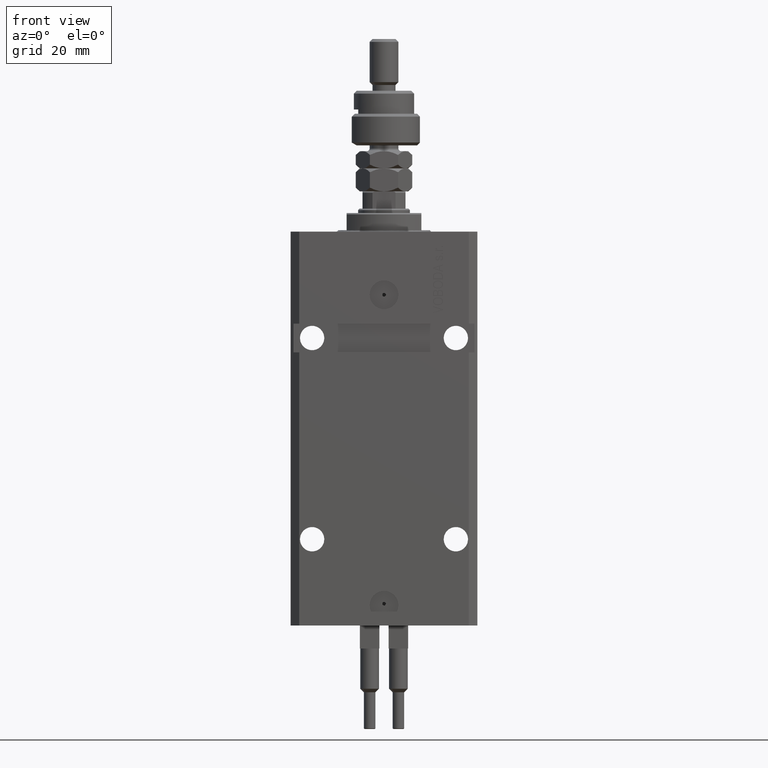
[diagram: clean part render]
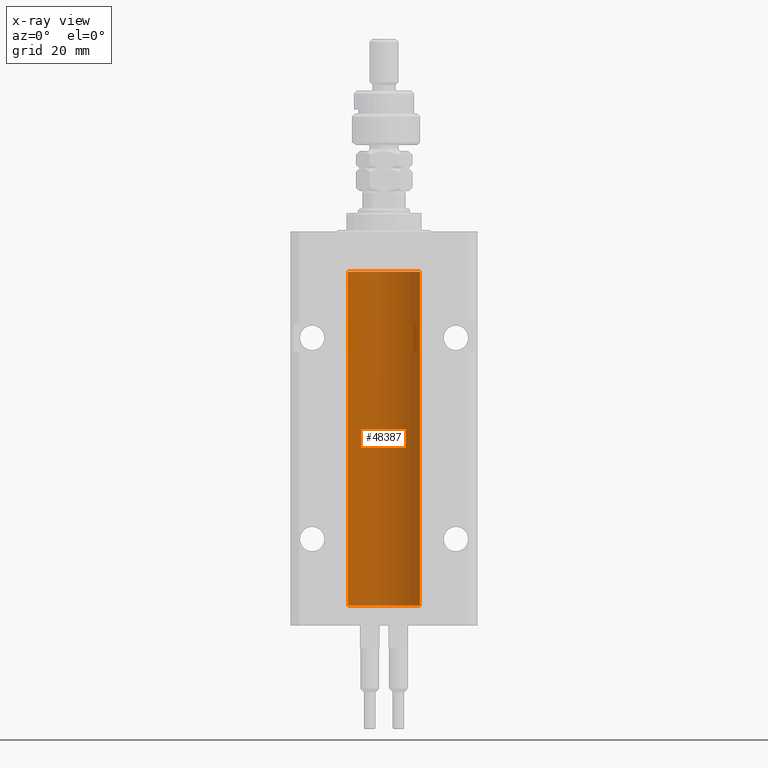
[diagram: x-ray — body ghosted, one internal face saturated and labeled with its STEP entity id]
A machine part, front view, then the same camera in x-ray: the body is ghosted and one INTERNAL B-rep face — a face not visible from any outside direction — is saturated and labeled: STEP entity #48387.
In plain terms, the highlighted cylindrical surface (edge-blend (fillet) strip) has radius 12.5 mm, axis along (0, 0, 1).
Its self-contained STEP definition (entity closure, byte-faithful):
#63 = CARTESIAN_POINT ( 'NONE',  ( -12.48520330846397819, 0.6088355886774127201, -22.16325431852561323 ) ) ;
#573 = B_SPLINE_CURVE_WITH_KNOTS ( 'NONE', 3,
 ( #35087, #10990, #22895, #19256, #46771, #7593, #47544, #39236, #63, #11230, #50928, #39493, #23668, #47298 ),
 .UNSPECIFIED., .F., .F.,
 ( 4, 2, 2, 2, 2, 2, 4 ),
 ( 2.030551168097110502E-20, 0.0002442924852390969078, 0.0004885849704781938157, 0.0009771699409563880650, 0.001221462426195485135, 0.001465754911434582423, 0.001954339881912776130 ),
 .UNSPECIFIED. ) ;
#665 = EDGE_CURVE ( 'NONE', #23102, #18892, #9648, .T. ) ;
#720 = DIRECTION ( 'NONE',  ( -0.000000000000000000, -0.000000000000000000, 1.000000000000000000 ) ) ;
#1540 = EDGE_LOOP ( 'NONE', ( #17902, #17770, #11393, #23682, #17031, #37046, #42720, #45254 ) ) ;
#2438 = CARTESIAN_POINT ( 'NONE',  ( -12.50000000000017941, 3.883381307462307207E-13, -125.6250000000035953 ) ) ;
#2452 = LINE ( 'NONE', #19295, #46502 ) ;
#2701 = CARTESIAN_POINT ( 'NONE',  ( -12.48436813453758631, 0.6249418250771061611, -124.8366899679892441 ) ) ;
#3195 = VECTOR ( 'NONE', #50769, 1000.000000000000000 ) ;
#3448 = EDGE_CURVE ( 'NONE', #3754, #19072, #573, .T. ) ;
#3459 = CARTESIAN_POINT ( 'NONE',  ( -12.48520330846398174, 0.6088355886774048376, -125.1632543185256310 ) ) ;
#3520 = CARTESIAN_POINT ( 'NONE',  ( -12.50000000000000000, 1.530808498934191521E-15, -130.0999999999999943 ) ) ;
#3754 = VERTEX_POINT ( 'NONE', #14991 ) ;
#7593 = CARTESIAN_POINT ( 'NONE',  ( -12.48810268015257563, 0.5573155909661349217, -21.67347410093867666 ) ) ;
#9544 = EDGE_CURVE ( 'NONE', #32462, #29744, #48765, .T. ) ;
#9648 = CIRCLE ( 'NONE', #35325, 12.50000000000000000 ) ;
#10167 = CARTESIAN_POINT ( 'NONE',  ( 0.000000000000000000, 0.000000000000000000, -13.99999999999999822 ) ) ;
#10249 = CARTESIAN_POINT ( 'NONE',  ( -12.50000000000000000, -1.890568805888175348E-14, -124.3750000000000000 ) ) ;
#10990 = CARTESIAN_POINT ( 'NONE',  ( -12.50000000000000000, 0.08260426088729219685, -21.37500000000000000 ) ) ;
#11013 = CARTESIAN_POINT ( 'NONE',  ( -12.49625855304193855, 0.3150454781037954621, -124.4540280029748658 ) ) ;
#11230 = CARTESIAN_POINT ( 'NONE',  ( -12.48809959379011403, 0.5462151254764975317, -22.31461370481611795 ) ) ;
#11393 = ORIENTED_EDGE ( 'NONE', *, *, #26647, .T. ) ;
#12480 = CARTESIAN_POINT ( 'NONE',  ( 12.50000000000000000, 0.000000000000000000, -130.0999999999999943 ) ) ;
#14991 = CARTESIAN_POINT ( 'NONE',  ( -12.50000000000000000, -2.089494013101375120E-17, -21.37499999999999645 ) ) ;
#16043 = FACE_OUTER_BOUND ( 'NONE', #1540, .T. ) ;
#16552 = DIRECTION ( 'NONE',  ( 1.000000000000000000, 0.000000000000000000, 0.000000000000000000 ) ) ;
#17031 = ORIENTED_EDGE ( 'NONE', *, *, #50202, .F. ) ;
#17181 = DIRECTION ( 'NONE',  ( 0.000000000000000000, 0.000000000000000000, 1.000000000000000000 ) ) ;
#17770 = ORIENTED_EDGE ( 'NONE', *, *, #665, .F. ) ;
#17902 = ORIENTED_EDGE ( 'NONE', *, *, #41651, .F. ) ;
#18270 = CARTESIAN_POINT ( 'NONE',  ( -12.49011732893843707, 0.5003763274120269777, -125.3834811128928806 ) ) ;
#18892 = VERTEX_POINT ( 'NONE', #41253 ) ;
#19072 = VERTEX_POINT ( 'NONE', #45535 ) ;
#19256 = CARTESIAN_POINT ( 'NONE',  ( -12.49625855304193678, 0.3150454781038042329, -21.45402800297484802 ) ) ;
#19295 = CARTESIAN_POINT ( 'NONE',  ( -12.50000000000000000, 1.530808498934191521E-15, -130.0999999999999943 ) ) ;
#19737 = CARTESIAN_POINT ( 'NONE',  ( 12.50000000000000000, 0.000000000000000000, -130.0999999999999943 ) ) ;
#21896 = VERTEX_POINT ( 'NONE', #22853 ) ;
#22130 = CARTESIAN_POINT ( 'NONE',  ( -12.50000000000000000, 1.530808498934191521E-15, -130.0999999999999943 ) ) ;
#22671 = CARTESIAN_POINT ( 'NONE',  ( -12.49631005746706691, 0.3253680783018559897, -125.5585674046538998 ) ) ;
#22853 = CARTESIAN_POINT ( 'NONE',  ( -12.50000000000000000, -1.890568805888175348E-14, -124.3750000000000000 ) ) ;
#22895 = CARTESIAN_POINT ( 'NONE',  ( -12.49915784441386890, 0.1636601911727947889, -21.39126818989430490 ) ) ;
#22917 = CARTESIAN_POINT ( 'NONE',  ( -12.49422197749723829, 0.3843754434364221040, -124.5004709956809705 ) ) ;
#23102 = VERTEX_POINT ( 'NONE', #12480 ) ;
#23416 = CARTESIAN_POINT ( 'NONE',  ( -12.50000000000017941, 3.883381307462307207E-13, -125.6250000000035953 ) ) ;
#23668 = CARTESIAN_POINT ( 'NONE',  ( -12.49999999999999289, 0.1631761135151241215, -22.62499999999984013 ) ) ;
#23682 = ORIENTED_EDGE ( 'NONE', *, *, #9544, .T. ) ;
#24689 = EDGE_CURVE ( 'NONE', #21896, #50379, #36174, .T. ) ;
#25916 = CARTESIAN_POINT ( 'NONE',  ( 12.50000000000000000, 0.000000000000000000, -13.99999999999999822 ) ) ;
#26311 = CARTESIAN_POINT ( 'NONE',  ( -12.48810268015257563, 0.5573155909661203777, -124.6734741009386909 ) ) ;
#26394 = AXIS2_PLACEMENT_3D ( 'NONE', #10167, #41792, #30365 ) ;
#26647 = EDGE_CURVE ( 'NONE', #23102, #32462, #35847, .T. ) ;
#27072 = CARTESIAN_POINT ( 'NONE',  ( -12.49915784441387068, 0.1636601911727856851, -124.3912681898942765 ) ) ;
#28357 = DIRECTION ( 'NONE',  ( 1.000000000000000000, 0.000000000000000000, 0.000000000000000000 ) ) ;
#29744 = VERTEX_POINT ( 'NONE', #36129 ) ;
#30221 = DIRECTION ( 'NONE',  ( -0.000000000000000000, -0.000000000000000000, 1.000000000000000000 ) ) ;
#30365 = DIRECTION ( 'NONE',  ( 1.000000000000000000, 0.000000000000000000, 0.000000000000000000 ) ) ;
#30938 = DIRECTION ( 'NONE',  ( -0.000000000000000000, -0.000000000000000000, 1.000000000000000000 ) ) ;
#32117 = CARTESIAN_POINT ( 'NONE',  ( 0.000000000000000000, 0.000000000000000000, -130.0999999999999943 ) ) ;
#32462 = VERTEX_POINT ( 'NONE', #25916 ) ;
#33258 = VECTOR ( 'NONE', #30938, 1000.000000000000000 ) ;
#35084 = EDGE_CURVE ( 'NONE', #21896, #19072, #50506, .T. ) ;
#35087 = CARTESIAN_POINT ( 'NONE',  ( -12.50000000000000000, -2.089494013101375120E-17, -21.37499999999999645 ) ) ;
#35325 = AXIS2_PLACEMENT_3D ( 'NONE', #48578, #17181, #28357 ) ;
#35847 = LINE ( 'NONE', #19737, #50216 ) ;
#36129 = CARTESIAN_POINT ( 'NONE',  ( -12.50000000000000000, 1.530808498934191521E-15, -13.99999999999999822 ) ) ;
#36174 = B_SPLINE_CURVE_WITH_KNOTS ( 'NONE', 3,
 ( #10249, #37993, #27072, #11013, #22917, #26311, #2701, #42891, #3459, #42392, #18270, #22671, #38749, #2438 ),
 .UNSPECIFIED., .F., .F.,
 ( 4, 2, 2, 2, 2, 2, 4 ),
 ( 3.496117753580553008E-18, 0.0002442924852390892100, 0.0004885849704781749505, 0.0009771699409563759219, 0.001221462426195476462, 0.001465754911434576785, 0.001954339881912777865 ),
 .UNSPECIFIED. ) ;
#37046 = ORIENTED_EDGE ( 'NONE', *, *, #3448, .T. ) ;
#37993 = CARTESIAN_POINT ( 'NONE',  ( -12.50000000000000178, 0.08260426088727608473, -124.3749999999999858 ) ) ;
#38749 = CARTESIAN_POINT ( 'NONE',  ( -12.49999999999999467, 0.1631761135151251485, -125.6249999999999005 ) ) ;
#39236 = CARTESIAN_POINT ( 'NONE',  ( -12.48436376893640443, 0.6250290278979917513, -22.08132082824473486 ) ) ;
#39493 = CARTESIAN_POINT ( 'NONE',  ( -12.49631005746706336, 0.3253680783018528255, -22.55856740465392463 ) ) ;
#40616 = AXIS2_PLACEMENT_3D ( 'NONE', #32117, #720, #16552 ) ;
#41253 = CARTESIAN_POINT ( 'NONE',  ( -12.50000000000000000, 1.530808498934191521E-15, -130.0999999999999943 ) ) ;
#41651 = EDGE_CURVE ( 'NONE', #18892, #50379, #2452, .T. ) ;
#41792 = DIRECTION ( 'NONE',  ( 0.000000000000000000, 0.000000000000000000, 1.000000000000000000 ) ) ;
#41861 = LINE ( 'NONE', #22130, #33258 ) ;
#42392 = CARTESIAN_POINT ( 'NONE',  ( -12.48809959379011758, 0.5462151254764870956, -125.3146137048161677 ) ) ;
#42720 = ORIENTED_EDGE ( 'NONE', *, *, #35084, .F. ) ;
#42891 = CARTESIAN_POINT ( 'NONE',  ( -12.48436376893640265, 0.6250290278979852010, -125.0813208282447135 ) ) ;
#43608 = DIRECTION ( 'NONE',  ( -0.000000000000000000, -0.000000000000000000, 1.000000000000000000 ) ) ;
#45254 = ORIENTED_EDGE ( 'NONE', *, *, #24689, .T. ) ;
#45535 = CARTESIAN_POINT ( 'NONE',  ( -12.50000000000017941, 3.883381646606358354E-13, -22.62500000000358824 ) ) ;
#46502 = VECTOR ( 'NONE', #30221, 1000.000000000000000 ) ;
#46771 = CARTESIAN_POINT ( 'NONE',  ( -12.49422197749724006, 0.3843754434364375916, -21.50047099568095277 ) ) ;
#47298 = CARTESIAN_POINT ( 'NONE',  ( -12.50000000000017941, 3.883381646606358354E-13, -22.62500000000358824 ) ) ;
#47544 = CARTESIAN_POINT ( 'NONE',  ( -12.48436813453758454, 0.6249418250771192618, -21.83668996798922635 ) ) ;
#47705 = CYLINDRICAL_SURFACE ( 'NONE', #40616, 12.50000000000000000 ) ;
#48387 = ADVANCED_FACE ( 'NONE', ( #16043 ), #47705, .F. ) ;
#48578 = CARTESIAN_POINT ( 'NONE',  ( 0.000000000000000000, 0.000000000000000000, -130.0999999999999943 ) ) ;
#48765 = CIRCLE ( 'NONE', #26394, 12.50000000000000000 ) ;
#50202 = EDGE_CURVE ( 'NONE', #3754, #29744, #41861, .T. ) ;
#50216 = VECTOR ( 'NONE', #43608, 1000.000000000000000 ) ;
#50379 = VERTEX_POINT ( 'NONE', #23416 ) ;
#50506 = LINE ( 'NONE', #3520, #3195 ) ;
#50769 = DIRECTION ( 'NONE',  ( -0.000000000000000000, -0.000000000000000000, 1.000000000000000000 ) ) ;
#50928 = CARTESIAN_POINT ( 'NONE',  ( -12.49011732893843529, 0.5003763274120274218, -22.38348111289287701 ) ) ;